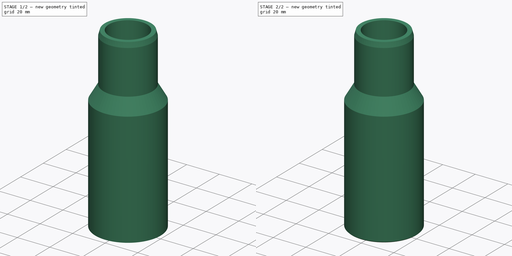
[diagram: build sequence overview — one tinted view per stage of 2, left to right]
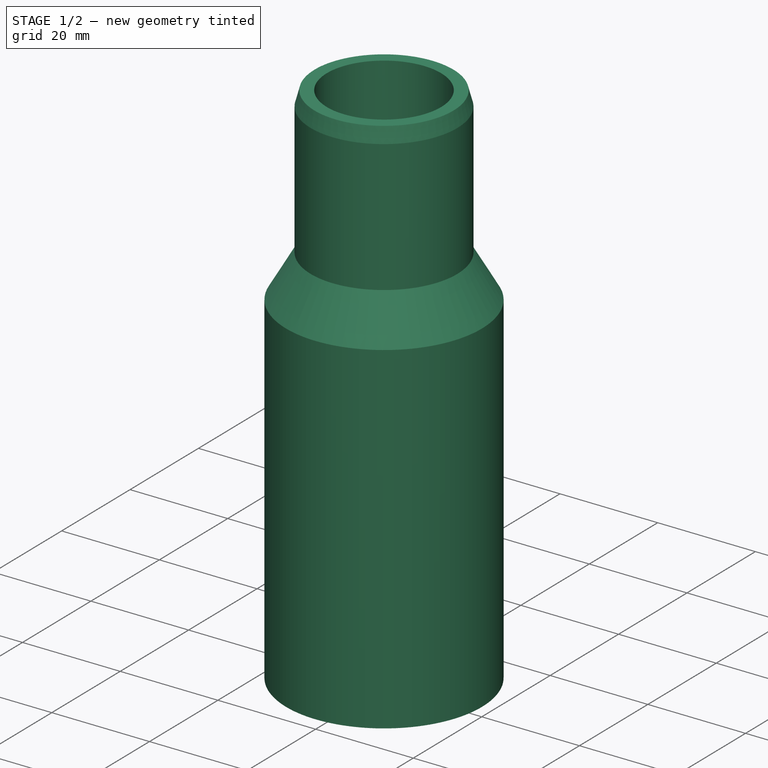
[diagram: stage 1 of 2 — iso view after this stage's code; geometry added in this stage tinted green]
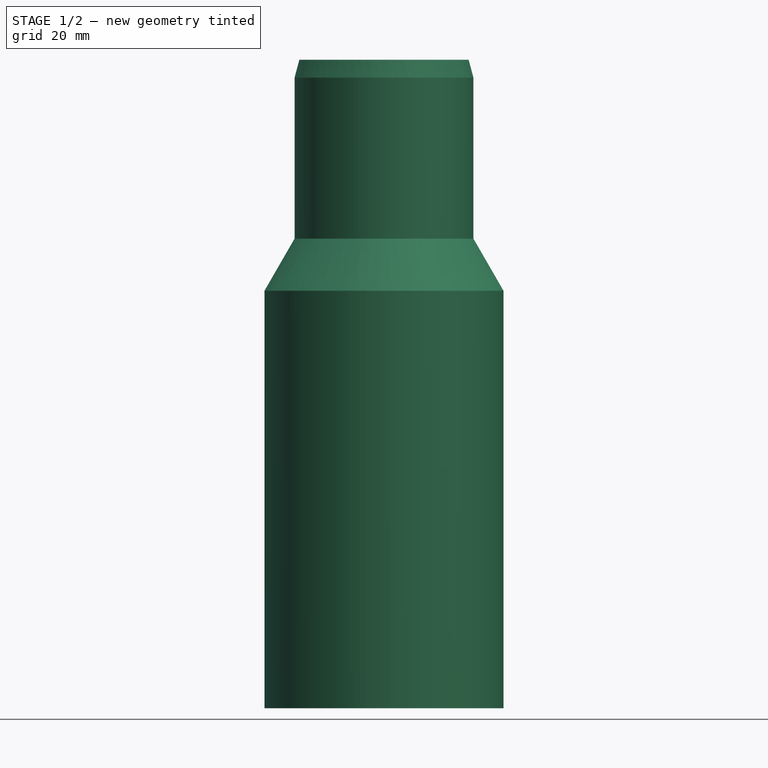
[diagram: stage 1 of 2 — front view after this stage's code; geometry added in this stage tinted green]
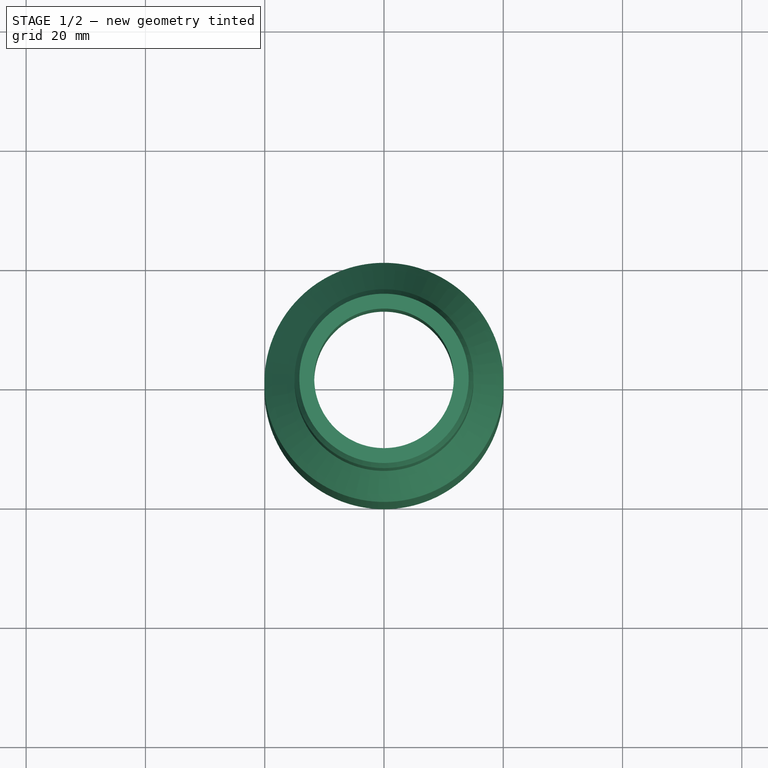
[diagram: stage 1 of 2 — top view after this stage's code; geometry added in this stage tinted green]
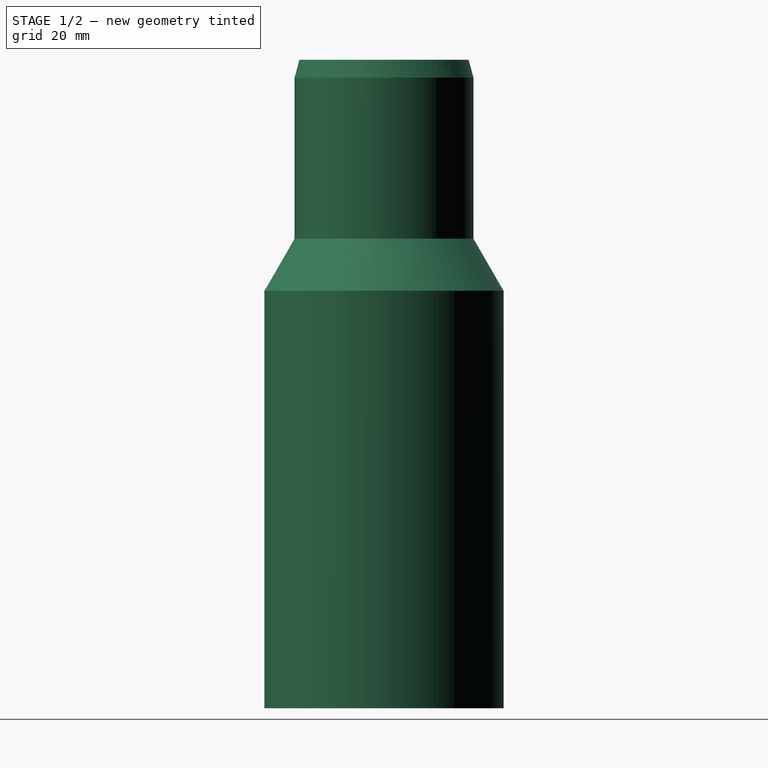
[diagram: stage 1 of 2 — right view after this stage's code; geometry added in this stage tinted green]
FCSTD DOCUMENT  (FreeCAD 2024.1006R14555 (Git shallow))
Label: circular saw adapter
License: All rights reserved
LicenseURL: https://en.wikipedia.org/wiki/All_rights_reserved
objects: PartDesign::Chamfer×2, Sketcher::SketchObject×1, PartDesign::Revolution×1, Spreadsheet::Sheet×1, PartDesign::Body×1
note: 12 computed .brp shape members not serialized (recipe doc carries the construction recipe); baked Part::Feature solids carry a one-line shape summary decoded from their .brp

FEATURE [Sketcher::SketchObject] Sketch010
  ArcFitTolerance = 1e-06
  AttachmentSupport = -> [YZ_Plane002]
  ExternalBSplineMaxDegree = 5
  ExternalBSplineTolerance = 0.0001
  FixShape = 1
  FullyConstrained = true
  InternalTolerance = 1e-06
  InvalidShape = false
  MakeInternals = false
  MapMode = 5
  Placement = pos=(0,0,0) rot=(0.57735,0.57735,0.57735;2.0944rad)
  Support = -> [YZ_Plane002]
  TreeRank = 71
  ValidateShape = false
  expr: Constraints[10] = <<dim>>.flange_length
  expr: Constraints[11] = <<dim>>.outer_d_flange / 2
  expr: Constraints[16] = -<<dim>>.adapter_length
  expr: Constraints[18] = <<dim>>.inner_d_low / 2
  expr: Constraints[20] = <<dim>>.tool_mount_d / 2
  expr: Constraints[25] = <<dim>>.tool_mount_length
  expr: Constraints[26] = -180 + <<dim>>.tool_mount_fillet_angle
  expr: Constraints[8] = <<dim>>.inner_d_high / 2
  expr: Constraints[9] = <<dim>>.outer_d_high / 2
  sketch-geometry (16):
    g0: LineSegment StartX=18.25 StartY=-70 StartZ=0 EndX=20.05 EndY=-70 EndZ=0
    g1: LineSegment StartX=20.05 StartY=-70 StartZ=0 EndX=20.05 EndY=0 EndZ=0
    g2: LineSegment [constr] StartX=20.05 StartY=0 StartZ=0 EndX=23.05 EndY=0 EndZ=0
    g3: LineSegment [constr] StartX=23.05 StartY=0 StartZ=0 EndX=23.05 EndY=30 EndZ=0
    g4: LineSegment [constr] StartX=23.05 StartY=30 StartZ=0 EndX=19.75 EndY=30 EndZ=0
    g5: LineSegment [constr] StartX=19.75 StartY=30 StartZ=0 EndX=19.75 EndY=7.5173 EndZ=0
    g6: LineSegment StartX=16.75 StartY=0 StartZ=0 EndX=18.25 EndY=-70 EndZ=0
    g7: LineSegment [constr] StartX=19.75 StartY=7.5173 StartZ=0 EndX=16.75 EndY=5 EndZ=0
    g8: LineSegment [constr] StartX=16.75 StartY=5 StartZ=0 EndX=16.75 EndY=0 EndZ=0
    g9: LineSegment StartX=15 StartY=38.7469 StartZ=0 EndX=15 EndY=8.74686 EndZ=0
    g10: LineSegment StartX=15 StartY=8.74686 StartZ=0 EndX=20.05 EndY=0 EndZ=0
    g11: LineSegment StartX=16.75 StartY=0 StartZ=0 EndX=11.7 EndY=8.74686 EndZ=0
    g12: LineSegment StartX=11.7 StartY=8.74686 StartZ=0 EndX=11.7 EndY=38.7469 EndZ=0
    g13: LineSegment [constr] StartX=16.75 StartY=0 StartZ=0 EndX=20.05 EndY=0 EndZ=0
    g14: LineSegment [constr] StartX=11.7 StartY=8.74686 StartZ=0 EndX=15 EndY=8.74686 EndZ=0
    g15: LineSegment StartX=11.7 StartY=38.7469 StartZ=0 EndX=15 EndY=38.7469 EndZ=0
  constraints (45):
    c: Coincident(g0,g1)
    c: PointOnObject(g1,g-1)
    c: Coincident(g1,g2)
    c: PointOnObject(g2,g-1)
    c: Coincident(g2,g3)
    c: Vertical(g3)
    c: Vertical(g1)
    c: Horizontal(g0)
    c: DistanceX(g0) = 18.25
    c: DistanceX(g0) = 20.05
    c: DistanceY(g3,g3) = 30
    c: DistanceX(g3) = 23.05
    c: Coincident(g3,g4)
    c: Coincident(g4,g5)
    c: Vertical(g5)
    c: Coincident(g6,g0)
    c: DistanceY(g0) = -70
    c: Horizontal(g-1,g6)
    c: DistanceX(g6) = 16.75
    c: Horizontal(g4)
    c: DistanceX(g4) = 19.75
    c: Coincident(g7,g5)
    c: Coincident(g8,g7)
    c: Coincident(g8,g6)
    c: Vertical(g8)
    c: DistanceY(g7,g4) = 25
    c: Angle(g7) = -2.44346
    c: Vertical(g9)
    c: DistanceX(g9) = 15
    c: Coincident(g10,g9)
    c: Coincident(g10,g1)
    c: Coincident(g11,g6)
    c: Coincident(g12,g11)
    c: Vertical(g12)
    c: Coincident(g13,g6)
    c: Coincident(g13,g1)
    c: Coincident(g14,g11)
    c: Coincident(g14,g9)
    c: Horizontal(g14)
    c: Parallel(g11,g10)
    c: DistanceY(g12,g12) = 30
    c: Angle(g11) = 2.0944
    c: Equal(g12,g9)
    c: Coincident(g15,g12)
    c: Coincident(g15,g9)
FEATURE [PartDesign::Revolution] Revolution
  AddSubType = 0
  Angle = 360
  Axis = (-2e-16,3e-16,1)
  Base = (0,0,0)
  ClaimChildren = false
  Fit = 0
  FitJoin = 0
  FixShape = 1
  InnerFit = 0
  InnerFitJoin = 0
  InvalidShape = false
  Linearize = true
  NewSolid = false
  Profile = -> Sketch010
  ReferenceAxis = -> Sketch010 [V_Axis]
  Refine = true
  Reversed = true
  Suppress = false
  TreeRank = 72
  ValidateShape = false
  _ProfileBasedVersion = 1
FEATURE [Spreadsheet::Sheet] Spreadsheet  label="dim"
  PythonMode = false
  ShowCells = 0
  TreeRank = 77
  cells = A1=layer_height; B1(layer_height)==0.2 mm; A2=extrusion_width; B2(extrusion_width)==0.5 mm; A4=inner_d_low; B4(inner_d_low)==33.5 mm; A5=inner_d_high; B5(inner_d_high)==36.5 mm; D5=outer_d_high; E5(outer_d_high)==inner_d_high + 2 * wall; A6=adapter_length; B6(adapter_length)==70 mm; A7=wall; B7(wall)==1.8 mm; A9=tool_mount_d_delta; B9(tool_mount_d_delta)==6 mm; D9=tool_mount_d; E9(tool_mount_d)==inner_d_low + tool_mount_d_delta; A10=tool_mount_length; B10(tool_mount_length)==25 mm; A11=tool_mount_slack; B11(tool_mount_slack)==0.25 mm; D11=tool_d; E11(tool_d)==tool_mount_d - tool_mount_slack; A12=tool_mount_fillet_angle; B12(tool_mount_fillet_angle)==40 deg; A13=tool_base_chamfer; B13(tool_base_chamfer)==1 mm; A14=tool_top_grab_thickness; B14(tool_top_grab_thickness)==5 mm; A15=tool_inset; B15(tool_inset)==2 mm; A17=large_tool_side; B17(large_tool_side)==100 mm; A18=large_tool_fillet; B18(large_tool_fillet)==10 mm; A19=large_tool_length; B19(large_tool_length)==50 mm; A20=large_tool_top_wall; B20(large_tool_top_wall)==3 mm; A21=large_tool_side_clamp_size; B21(large_tool_side_clamp_size)==15 mm; A23=sieve_hole; B23(sieve_hole)==1.5 mm; D23=num_holes; E23(num_holes)==round(inner_d_low / (sieve_hole + sieve_mesh)); A24=sieve_mesh; B24(sieve_mesh)==0.9 mm; D24=hole_offset; E24(hole_offset)==num_holes / 2 * (sieve_hole + sieve_mesh); A25=sieve_thickness; B25(sieve_thickness)==2 mm; A27=flange_d_delta; B27(flange_d_delta)==3 mm; D27=outer_d_flange; E27(outer_d_flange)==outer_d_high + flange_d_delta * 2; A28=flange_length; B28(flange_length)==30 mm; A30=mount_d_slack; B30(mount_d_slack)==0.5 mm; D30=mount_inner_d; E30(mount_inner_d)==<<dim>>.outer_d_high + mount_d_slack; A31=mount_wall; B31(mount_wall)==4 mm; D31=mount_outer_d; E31(mount_outer_d)==mount_inner_d + 2 * mount_wall; A32=mount_length; B32(mount_length)==30 mm; A33=mount_width; B33(mount_width)==120 mm; A34=mount_depth; B34(mount_depth)==60 mm; A35=mount_fillet; B35(mount_fillet)==5 mm; A36=mount_thickness; B36(mount_thickness)==5 mm; A38=mount_fins_width; B38(mount_fins_width)==8 mm; A39=mount_fins_distance; B39(mount_fins_distance)==18 mm; A41=mount_internal_hole_z_offset; B41(mount_internal_hole_z_offset)==1 mm; D41=mount_internal_hole_height; E41(mount_internal_hole_height)==mount_thickness - 2 * mount_internal_hole_z_offset; A42=mount_internal_hole_side_offset; B42(mount_internal_hole_side_offset)==6 mm; A43=mount_internal_hole_count; B43(mount_internal_hole_count)=5; A44=mount_internal_hole_distance; B44(mount_internal_hole_distance)==10 mm
FEATURE [PartDesign::Chamfer] Chamfer
  AddSubType = 0
  Angle = 15
  Base = -> Revolution [Edge9]
  BaseFeature = -> Revolution
  ChamferType = 2
  FixShape = 1
  FlipDirection = false
  InvalidShape = false
  NewSolid = false
  Refine = true
  Size = 3
  Size2 = 1
  SupportTransform = false
  Suppress = false
  TreeRank = 78
  UseAllEdges = false
  ValidateShape = false
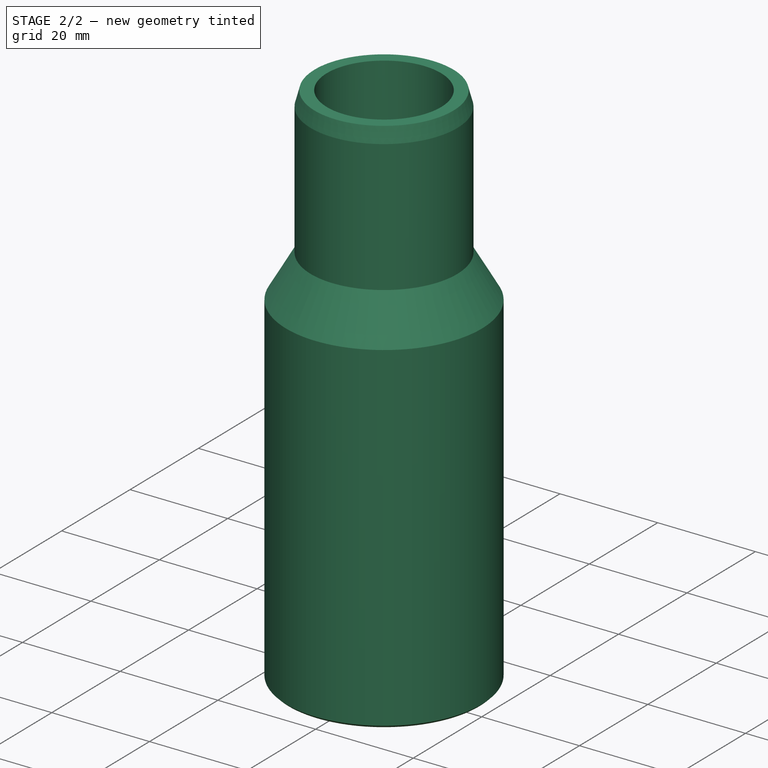
[diagram: stage 2 of 2 — iso view after this stage's code; geometry added in this stage tinted green]
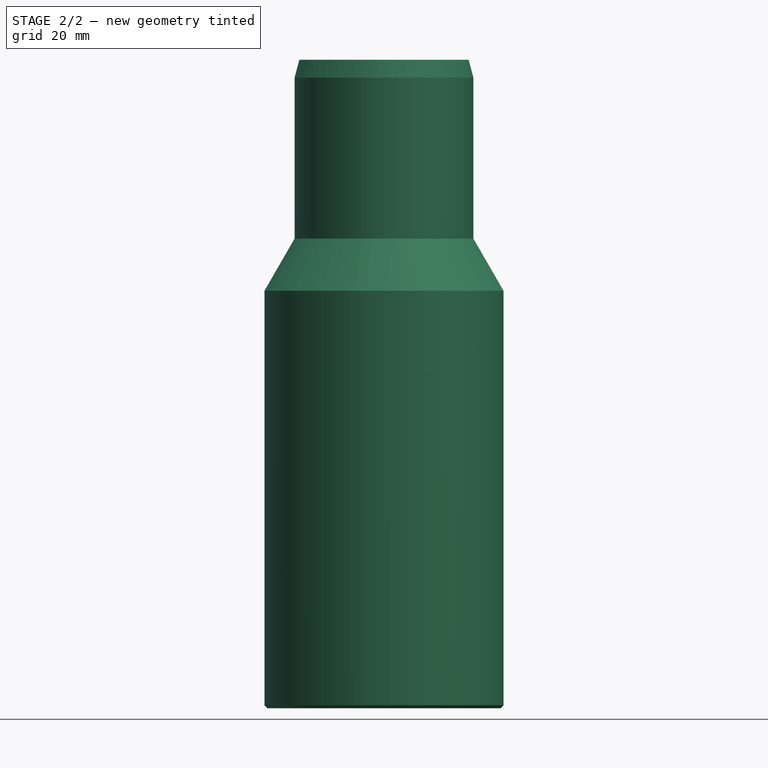
[diagram: stage 2 of 2 — front view after this stage's code; geometry added in this stage tinted green]
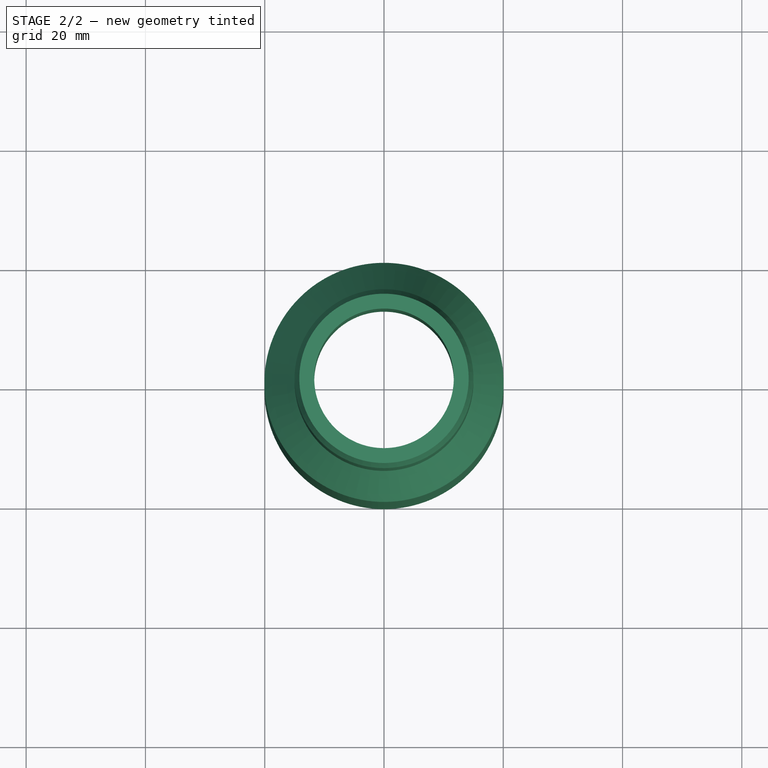
[diagram: stage 2 of 2 — top view after this stage's code; geometry added in this stage tinted green]
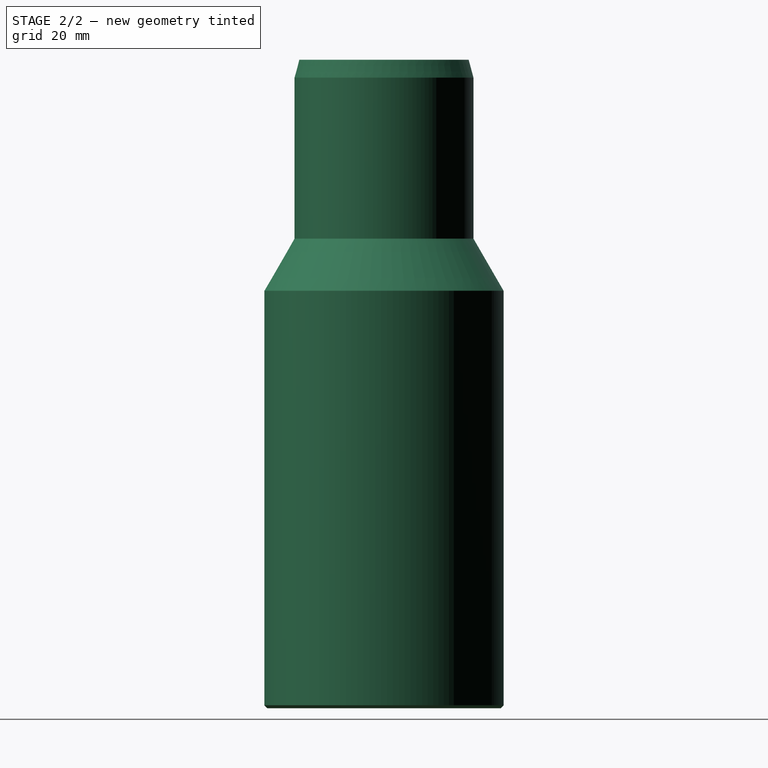
[diagram: stage 2 of 2 — right view after this stage's code; geometry added in this stage tinted green]
FEATURE [PartDesign::Chamfer] Chamfer001
  AddSubType = 0
  Angle = 45
  Base = -> Chamfer [Edge13,Edge9]
  BaseFeature = -> Chamfer
  ChamferType = 0
  FixShape = 1
  FlipDirection = false
  InvalidShape = false
  NewSolid = false
  Refine = true
  Size = 0.5
  Size2 = 1
  SupportTransform = false
  Suppress = false
  TreeRank = 79
  UseAllEdges = false
  ValidateShape = false
FEATURE [PartDesign::Body] Body002  label="adapter"
  AutoGroupSolids = false
  ClaimAllChildren = false
  ExportMode = 0
  FixShape = 1
  Group = -> [Sketch010,Revolution,Chamfer,Chamfer001]
  InvalidShape = false
  Origin = -> Origin002
  Placement = pos=(0,0,-35) rot=(0,0,1;0rad)
  Tip = -> Chamfer001
  TreeRank = 76
  ValidateShape = false
  _ExportChildren = -> [Revolution,Chamfer,Chamfer001]
  _GroupVersion = 1
  expr: Placement.Base.z = -<<dim>>.flange_length - <<dim>>.tool_top_grab_thickness
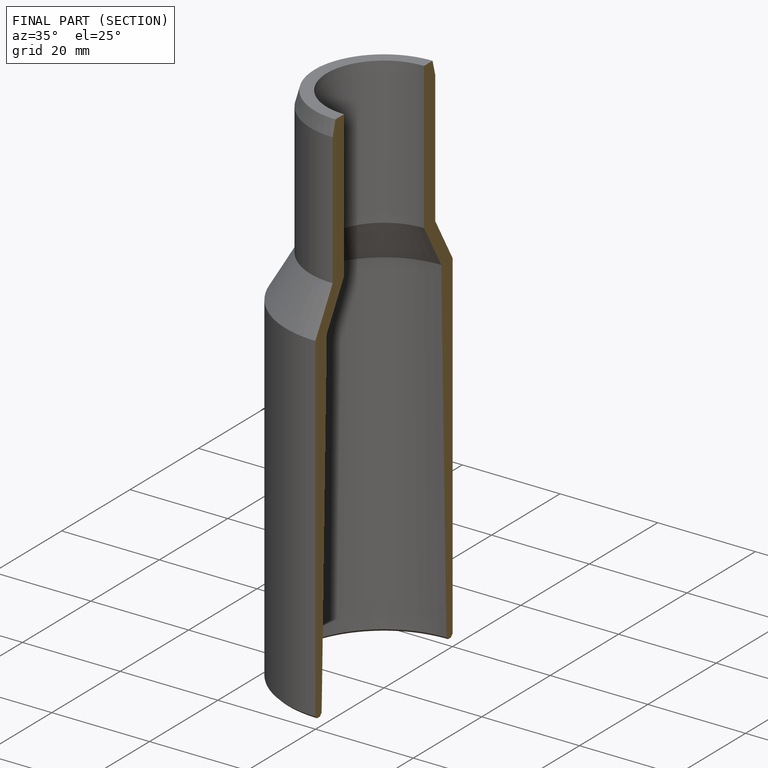
[diagram: finished part — half-section view (interior)]
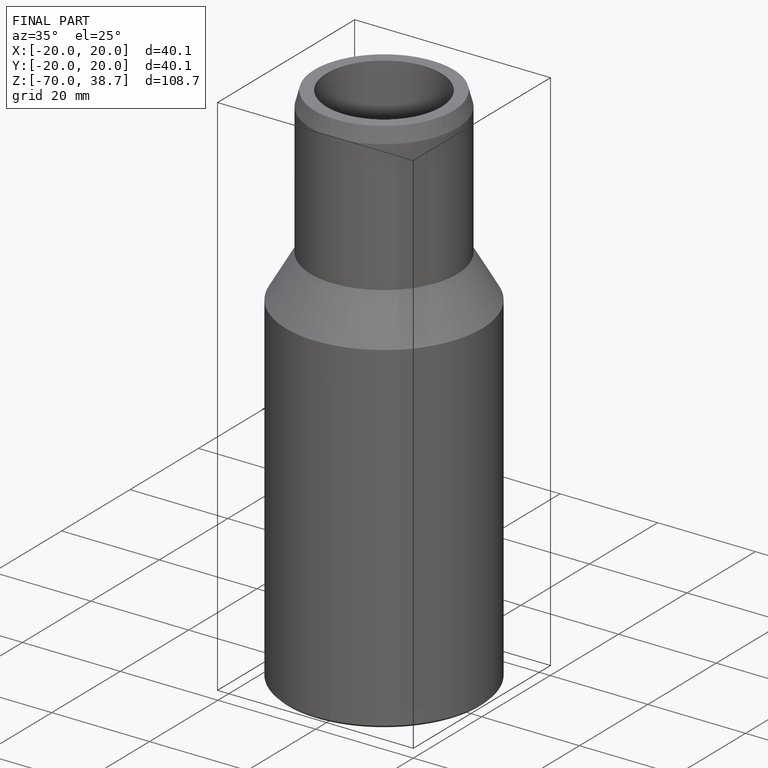
[diagram: finished part — iso view with bounding-box wireframe]
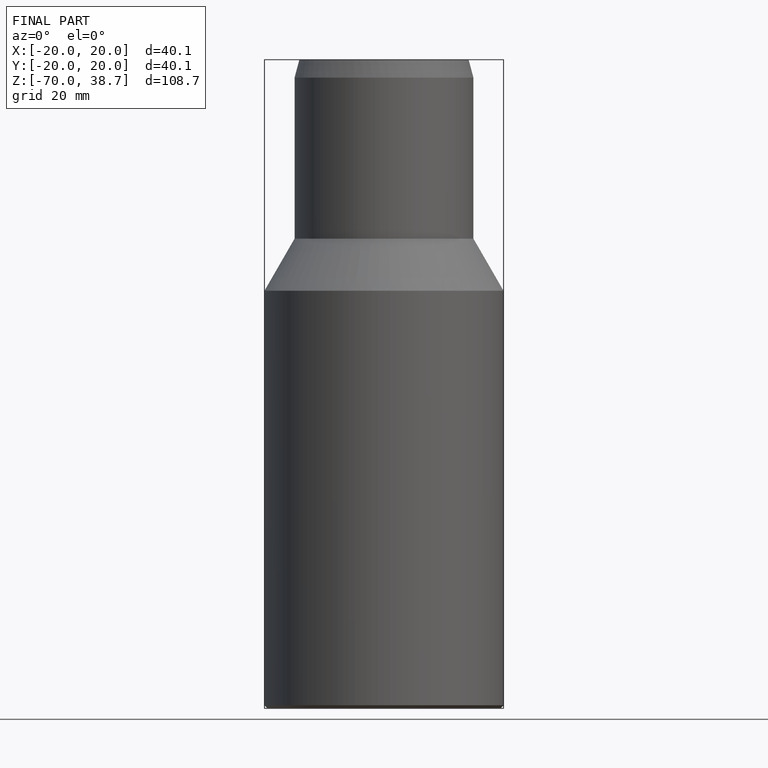
[diagram: finished part — front view with bounding-box wireframe]
